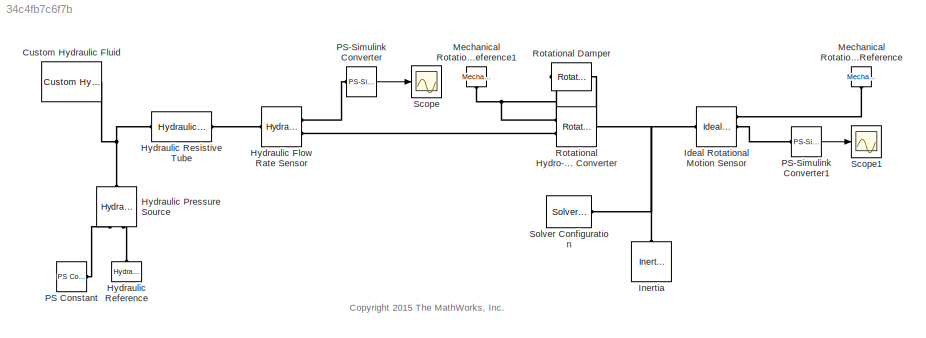
MODEL slx_34c4fb7c6f7b
KIND model
CONFIG AbsTol = 1e-3
CONFIG FixedStep = auto
CONFIG MaxStep = auto
CONFIG MinStep = auto
CONFIG RelTol = 1e-3
CONFIG SampleTimeConstraint = Unconstrained
CONFIG Solver = ode23t
CONFIG SolverMode = Auto
CONFIG SolverName = ode23t
CONFIG StartTime = 0.0
CONFIG StopTime = 100
BLOCK [Reference] Custom Hydraulic Fluid  REF=fl_lib/Hydraulic/Hydraulic Utilities/Custom Hydraulic
Fluid
  ClassName = custom_fluid
  ComponentPath = foundation.hydraulic.utilities.custom_fluid
  ComponentVariantNames = custom_fluid
  ComponentVariants = foundation.hydraulic.utilities.custom_fluid
  LogSimulationData = off
  Ports = [0, 0, 0, 0, 0, 0, 1]
  SchemaVersion = 1
  SourceBlock = fl_lib/Hydraulic/Hydraulic Utilities/Custom Hydraulic\nFluid
  SourceFile = foundation.hydraulic.utilities.custom_fluid
  SourceType = Custom Hydraulic\nFluid
  alpha = 0.005
  alpha_unit = 1
  bulk = 2.2e9
  bulk_unit = Pa
  density = 997
  density_unit = kg/m^3
  range_error = 2
  range_error_unit = 1
  viscosity_kin = 1e-6
  viscosity_kin_unit = m^2/s
BLOCK [Reference] Hydraulic Flow Rate Sensor  REF=fl_lib/Hydraulic/Hydraulic Sensors/Hydraulic Flow Rate
Sensor
  ClassName = flow_rate
  ComponentPath = foundation.hydraulic.sensors.flow_rate
  ComponentVariantNames = flow_rate
  ComponentVariants = foundation.hydraulic.sensors.flow_rate
  LogSimulationData = off
  Ports = [0, 0, 0, 0, 0, 1, 2]
  SchemaVersion = 1
  SourceBlock = fl_lib/Hydraulic/Hydraulic Sensors/Hydraulic Flow Rate\nSensor
  SourceFile = foundation.hydraulic.sensors.flow_rate
  SourceType = Hydraulic Flow Rate\nSensor
BLOCK [Reference] Hydraulic Pressure Source  REF=fl_lib/Hydraulic/Hydraulic Sources/Hydraulic Pressure
Source
  ClassName = pressure
  ComponentPath = foundation.hydraulic.sources.pressure
  ComponentVariantNames = pressure
  ComponentVariants = foundation.hydraulic.sources.pressure
  LogSimulationData = off
  Ports = [0, 0, 0, 0, 0, 1, 2]
  SchemaVersion = 1
  SourceBlock = fl_lib/Hydraulic/Hydraulic Sources/Hydraulic Pressure\nSource
  SourceFile = foundation.hydraulic.sources.pressure
  SourceType = Hydraulic Pressure\nSource
BLOCK [Reference] Hydraulic Reference  REF=fl_lib/Hydraulic/Hydraulic Elements/Hydraulic Reference
  ClassName = reference
  ComponentPath = foundation.hydraulic.elements.reference
  ComponentVariantNames = reference
  ComponentVariants = foundation.hydraulic.elements.reference
  LogSimulationData = off
  Ports = [0, 0, 0, 0, 0, 1]
  SchemaVersion = 1
  SourceBlock = fl_lib/Hydraulic/Hydraulic Elements/Hydraulic Reference
  SourceFile = foundation.hydraulic.elements.reference
  SourceType = Hydraulic Reference
BLOCK [Reference] Hydraulic Resistive Tube  REF=fl_lib/Hydraulic/Hydraulic Elements/Hydraulic Resistive
Tube
  ClassName = resistive_tube
  ComponentPath = foundation.hydraulic.elements.resistive_tube
  ComponentVariantNames = resistive_tube
  ComponentVariants = foundation.hydraulic.elements.resistive_tube
  D_h = 0.0112
  D_h_unit = m
  LogSimulationData = off
  Ports = [0, 0, 0, 0, 0, 1, 1]
  Re_lam = 2e+3
  Re_lam_unit = 1
  Re_turb = 4e+3
  Re_turb_unit = 1
  SchemaVersion = 1
  SourceBlock = fl_lib/Hydraulic/Hydraulic Elements/Hydraulic Resistive\nTube
  SourceFile = foundation.hydraulic.elements.resistive_tube
  SourceType = Hydraulic Resistive\nTube
  area = 1e-4
  area_unit = m^2
  cs_type = 1
  cs_type_unit = 1
  d_in = 0.1
  d_in_unit = m
  length = 5
  length_ad = 1
  length_ad_unit = m
  length_eff = 6
  length_eff_unit = m
  length_unit = m
  p = 0
  p_priority = High
  p_specify = off
  p_unit = Pa
  q = 1e-3
  q_priority = High
  q_specify = off
  q_unit = m^3/s
  rel_roughness = 0.001
  rel_roughness_unit = 1
  roughness = 1.5e-5
  roughness_unit = m
  s_factor = 64
  s_factor_unit = 1
BLOCK [Reference] Ideal Rotational Motion Sensor  REF=fl_lib/Mechanical/Mechanical Sensors/Ideal Rotational
Motion Sensor
  ClassName = angular_velocity
  ComponentPath = foundation.mechanical.sensors.angular_velocity
  ComponentVariantNames = angular_velocity
  ComponentVariants = foundation.mechanical.sensors.angular_velocity
  LogSimulationData = off
  Ports = [0, 0, 0, 0, 0, 1, 3]
  SchemaVersion = 1
  SourceBlock = fl_lib/Mechanical/Mechanical Sensors/Ideal Rotational\nMotion Sensor
  SourceFile = foundation.mechanical.sensors.angular_velocity
  SourceType = Ideal Rotational\nMotion Sensor
  offset = 0
  offset_unit = rad
BLOCK [Reference] Inertia  REF=fl_lib/Mechanical/Rotational Elements/Inertia
  ClassName = inertia
  ComponentPath = foundation.mechanical.rotational.inertia
  ComponentVariantNames = inertia
  ComponentVariants = foundation.mechanical.rotational.inertia
  LogSimulationData = off
  Ports = [0, 0, 0, 0, 0, 1]
  SchemaVersion = 1
  SourceBlock = fl_lib/Mechanical/Rotational Elements/Inertia
  SourceFile = foundation.mechanical.rotational.inertia
  SourceType = Inertia
  inertia = 0.01
  inertia_unit = kg*m^2
  t = 0
  t_priority = High
  t_specify = off
  t_unit = N*m
  w = 0
  w_priority = High
  w_specify = on
  w_unit = rad/s
BLOCK [Reference] Mechanical Rotational Reference  REF=fl_lib/Mechanical/Rotational Elements/Mechanical
Rotational Reference
  ClassName = reference
  ComponentPath = foundation.mechanical.rotational.reference
  ComponentVariantNames = reference
  ComponentVariants = foundation.mechanical.rotational.reference
  LogSimulationData = off
  Ports = [0, 0, 0, 0, 0, 1]
  SchemaVersion = 1
  SourceBlock = fl_lib/Mechanical/Rotational Elements/Mechanical\nRotational Reference
  SourceFile = foundation.mechanical.rotational.reference
  SourceType = Mechanical\nRotational Reference
BLOCK [Reference] Mechanical Rotational Reference1  REF=fl_lib/Mechanical/Rotational Elements/Mechanical
Rotational Reference
  ClassName = reference
  ComponentPath = foundation.mechanical.rotational.reference
  ComponentVariantNames = reference
  ComponentVariants = foundation.mechanical.rotational.reference
  LogSimulationData = off
  Ports = [0, 0, 0, 0, 0, 1]
  SchemaVersion = 1
  SourceBlock = fl_lib/Mechanical/Rotational Elements/Mechanical\nRotational Reference
  SourceFile = foundation.mechanical.rotational.reference
  SourceType = Mechanical\nRotational Reference
BLOCK [Reference] PS Constant  REF=fl_lib/Physical Signals/Sources/PS Constant
  ClassName = constant
  ComponentPath = foundation.physical_signal.sources.constant
  ComponentVariantNames = constant
  ComponentVariants = foundation.physical_signal.sources.constant
  LogSimulationData = off
  Ports = [0, 0, 0, 0, 0, 0, 1]
  SchemaVersion = 1
  SourceBlock = fl_lib/Physical Signals/Sources/PS Constant
  SourceFile = foundation.physical_signal.sources.constant
  SourceType = PS Constant
  constant = 100
  constant_unit = 1
BLOCK [Reference] PS-Simulink Converter  REF=nesl_utility/PS-Simulink
Converter
  AffineConversion = off
  Frequencies = []
  LeftPortType = input
  PhysicalDomain = network_engine_domain
  Ports = [0, 1, 0, 0, 0, 1]
  PseudoPeriodic = off
  RightPortType = output
  SourceBlock = nesl_utility/PS-Simulink\nConverter
  SourceType = PS-Simulink\nConverter
  SubClassName = ps_output
  Unit = m^3/s
BLOCK [Reference] PS-Simulink Converter1  REF=nesl_utility/PS-Simulink
Converter
  AffineConversion = off
  Frequencies = []
  LeftPortType = input
  PhysicalDomain = network_engine_domain
  Ports = [0, 1, 0, 0, 0, 1]
  PseudoPeriodic = off
  RightPortType = output
  SourceBlock = nesl_utility/PS-Simulink\nConverter
  SourceType = PS-Simulink\nConverter
  SubClassName = ps_output
  Unit = rad/s
BLOCK [Reference] Rotational Damper  REF=fl_lib/Mechanical/Rotational Elements/Rotational Damper
  ClassName = damper
  ComponentPath = foundation.mechanical.rotational.damper
  ComponentVariantNames = damper
  ComponentVariants = foundation.mechanical.rotational.damper
  D = 0.001
  D_unit = N*m/(rad/s)
  LogSimulationData = off
  Ports = [0, 0, 0, 0, 0, 1, 1]
  SchemaVersion = 1
  SourceBlock = fl_lib/Mechanical/Rotational Elements/Rotational Damper
  SourceFile = foundation.mechanical.rotational.damper
  SourceType = Rotational Damper
  t = 0
  t_priority = High
  t_specify = off
  t_unit = N*m
  w = 0
  w_priority = High
  w_specify = off
  w_unit = rad/s
BLOCK [Reference] Rotational Hydro-Mechanical Converter  REF=fl_lib/Hydraulic/Hydraulic Elements/Rotational
Hydro-Mechanical
Converter
  ClassName = converter_rot
  ComponentPath = foundation.hydraulic.elements.rotational_converter
  ComponentVariantNames = rotational_converter
  ComponentVariants = foundation.hydraulic.elements.rotational_converter
  D = 0.0003
  D_unit = m^3/rad
  LogSimulationData = off
  Ports = [0, 0, 0, 0, 0, 2, 1]
  SchemaVersion = 1
  SourceBlock = fl_lib/Hydraulic/Hydraulic Elements/Rotational\nHydro-Mechanical\nConverter
  SourceFile = foundation.hydraulic.elements.rotational_converter
  SourceType = Rotational\nHydro-Mechanical\nConverter
  V_dead = 1e-4
  V_dead_unit = m^3
  compressibility = 0
  compressibility_unit = 1
  initial_angle = 0
  initial_angle_unit = rad
  initial_pressure = 0
  initial_pressure_unit = Pa
  k_sh = 1.4
  k_sh_unit = 1
  or = 1
  or_unit = 1
BLOCK [Scope] Scope
  Floating = off
  NumInputPorts = 1
  Ports = [1]
  TimeRange = 100
  YMax = 0.003
  YMin = 0
BLOCK [Scope] Scope1
  Floating = off
  NumInputPorts = 1
  Ports = [1]
  SaveName = ScopeData1
  TimeRange = 100
  YMax = 10
  YMin = 0
BLOCK [Reference] Solver Configuration  REF=nesl_utility/Solver
Configuration
  AbsTol = 1e-06
  Accelerate = off
  AutomaticFiltering = on
  DelaysMemoryBudget = 1024
  DoDC = off
  DoFixedCost = off
  EnableSwitchedLinearOptims = on
  FilteringTimeConstant = 0.001
  FrequencyDomain = off
  Harmonics = []
  LeftPortType = input
  LinearAlgebra = Sparse
  LocalSolverChoice = NE_BACKWARD_EULER_ADVANCER
  LocalSolverSampleTime = .001
  MaxModeIter = 2
  MaxNonlinIter = 3
  MinStep = 1e-09
  NumHomotopyIterations = 100
  PhysicalDomain = network_engine_domain
  Ports = [0, 0, 0, 0, 0, 0, 1]
  Profile = off
  RelTol = 0.001
  ResidualTolerance = 1e-9
  RevertToSquareIcSolve = off
  RightPortType = generic
  SimulateNoise = off
  SourceBlock = nesl_utility/Solver\nConfiguration
  SourceType = Solver\nConfiguration
  SubClassName = solver
  ToWorkspace = off
  Tones = []
  UseCCode = off
  UseLocalSampling = off
  UseLocalSolver = off
ANNOTATION (root): <copyright redacted>
LINE PS-Simulink Converter1:1 -> Scope1:1
LINE PS-Simulink Converter:1 -> Scope:1
PNET net1: Custom Hydraulic Fluid:RConn1 -- Hydraulic Pressure Source:LConn1 -- Hydraulic Resistive Tube:LConn1
PLINE Hydraulic Flow Rate Sensor:LConn1 -- Hydraulic Resistive Tube:RConn1
PLINE Hydraulic Flow Rate Sensor:RConn1 -- PS-Simulink Converter:LConn1
PLINE Hydraulic Flow Rate Sensor:RConn2 -- Rotational Hydro-Mechanical Converter:LConn2
PLINE Hydraulic Pressure Source:RConn1 -- PS Constant:RConn1
PLINE Hydraulic Pressure Source:RConn2 -- Hydraulic Reference:LConn1
PNET net2: Ideal Rotational Motion Sensor:LConn1 -- Inertia:LConn1 -- Rotational Damper:LConn1 -- Rotational Hydro-Mechanical Converter:RConn1 -- Solver Configuration:RConn1
PLINE Ideal Rotational Motion Sensor:RConn1 -- Mechanical Rotational Reference:LConn1
PLINE Ideal Rotational Motion Sensor:RConn2 -- PS-Simulink Converter1:LConn1
PNET net3: Mechanical Rotational Reference1:LConn1 -- Rotational Damper:RConn1 -- Rotational Hydro-Mechanical Converter:LConn1
note: PNET lines group multi-terminal physical nets as a canonical sorted terminal list (undirected conserving connections); 2-terminal nets keep the pairwise PLINE form
